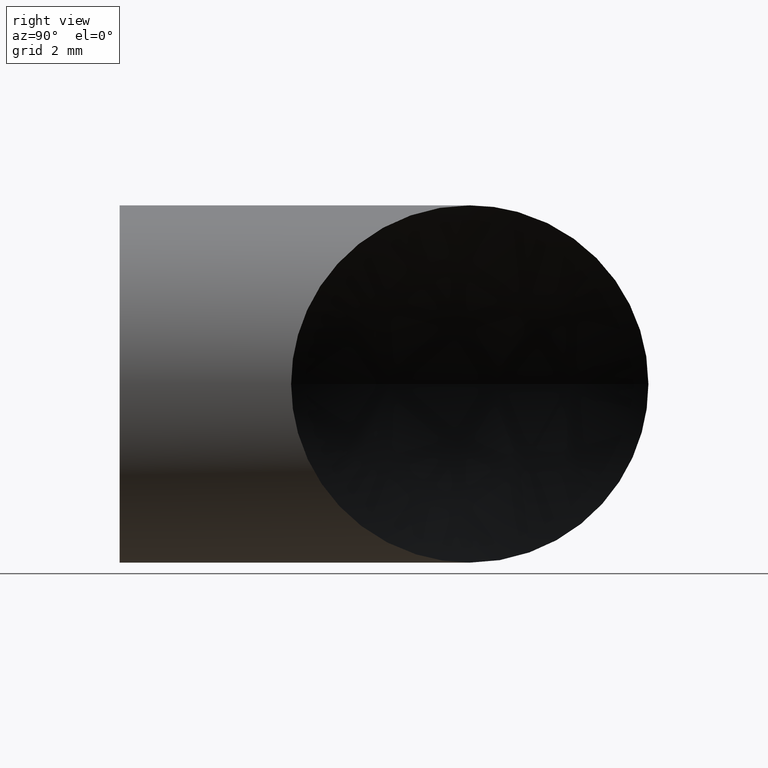
[diagram: clean part render]
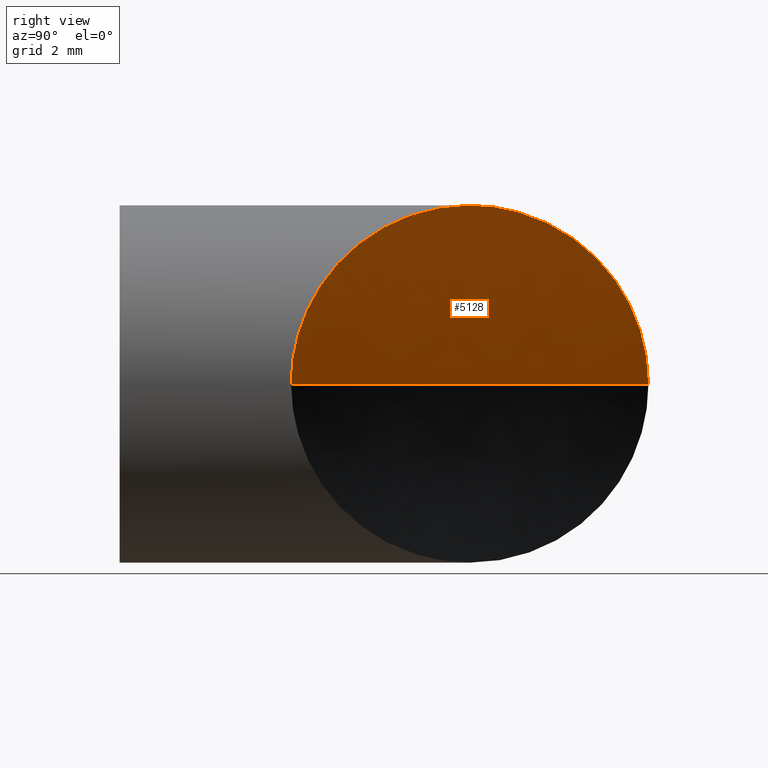
[diagram: same view with one face highlighted and labeled with its STEP entity id]
A machine part, right view. The second image highlights one B-rep face of the part: STEP entity #5128.
In plain terms, the highlighted face is a freeform B-spline surface patch.
Its self-contained STEP definition (entity closure, byte-faithful):
#10 = CARTESIAN_POINT ( 'NONE',  ( 0.2074293899178265000, -0.1108351405195563300, 0.09779979726553927900 ) ) ;
#242 = CARTESIAN_POINT ( 'NONE',  ( -0.2483313336091525200, 0.3449255830074313100, 0.03822638412863516700 ) ) ;
#249 = CARTESIAN_POINT ( 'NONE',  ( -0.007620581992234956900, 0.07258758138988975800, 0.05412013182545205600 ) ) ;
#260 = CARTESIAN_POINT ( 'NONE',  ( -0.1439263207305914400, 0.2405205701288879700, 0.1801129965289732000 ) ) ;
#328 = VERTEX_POINT ( 'NONE', #3143 ) ;
#446 = CARTESIAN_POINT ( 'NONE',  ( 0.02750204095376720600, 0.06909220844451242900, 0.2176308934123368000 ) ) ;
#467 = CARTESIAN_POINT ( 'NONE',  ( 0.2240420653556845200, -0.1274478159574367100, 0.06572660798382019800 ) ) ;
#704 = CARTESIAN_POINT ( 'NONE',  ( -0.2389835721197730600, 0.3355778215180397200, 0.06519288010595564200 ) ) ;
#715 = CARTESIAN_POINT ( 'NONE',  ( 0.008255332230856973100, 0.07258758138988975800, 0.2215077017317224600 ) ) ;
#725 = CARTESIAN_POINT ( 'NONE',  ( -0.1045585658773618700, 0.2011528152756242900, 0.2009096358840281000 ) ) ;
#769 = VERTEX_POINT ( 'NONE', #4355 ) ;
#925 = CARTESIAN_POINT ( 'NONE',  ( 0.06220057806874414200, 0.03439367132953992400, 0.2104882971352759500 ) ) ;
#948 = CARTESIAN_POINT ( 'NONE',  ( 0.2376302804509106700, -0.1410360310526207700, 0.01946412126329600000 ) ) ;
#1174 = CARTESIAN_POINT ( 'NONE',  ( -0.2271271847888585400, 0.3237214341871170700, 0.09000974389156730900 ) ) ;
#1180 = CARTESIAN_POINT ( 'NONE',  ( -0.2606205819970633900, 0.3575920813965498500, 0.06476019384117305500 ) ) ;
#1191 = CARTESIAN_POINT ( 'NONE',  ( -0.03561390963605611700, 0.1322081590343601200, 0.2200089696472141100 ) ) ;
#1382 = EDGE_CURVE ( 'NONE', #769, #5370, #2507, .T. ) ;
#1386 = CARTESIAN_POINT ( 'NONE',  ( 0.1024936689918958700, -0.005899419593617726500, 0.1949496336792929400 ) ) ;
#1407 = CARTESIAN_POINT ( 'NONE',  ( 0.2417820120806034600, -0.1451877626823570900, -0.01003554106031911800 ) ) ;
#1619 = CARTESIAN_POINT ( 'NONE',  ( 0.2453794180125934700, -0.1484079186143272300, 0.04348006980973102100 ) ) ;
#1628 = CARTESIAN_POINT ( 'NONE',  ( -0.2131319652719362600, 0.3097262146702338700, 0.1126346569115758000 ) ) ;
#1638 = CARTESIAN_POINT ( 'NONE',  ( -0.2427363646247167900, 0.3575920813965499100, 0.2533222913409399800 ) ) ;
#1850 = CARTESIAN_POINT ( 'NONE',  ( 0.1413515329557038200, -0.04475728355743328200, 0.1713969580252879300 ) ) ;
#1876 = CARTESIAN_POINT ( 'NONE',  ( 0.2423794180125524700, -0.1457851686142592500, -0.02999103035275857100 ) ) ;
#2066 = CARTESIAN_POINT ( 'NONE',  ( -0.2576205853558131100, 0.3542148351772880800, -0.009793500484691623800 ) ) ;
#2101 = CARTESIAN_POINT ( 'NONE',  ( -0.1976029079395368300, 0.2941971573377943300, 0.1327281202608942000 ) ) ;
#2159 = FACE_OUTER_BOUND ( 'NONE', #4875, .T. ) ;
#2236 = B_SPLINE_CURVE_WITH_KNOTS ( 'NONE', 3,
 ( #2991, #2066, #3006, #242, #3491, #704, #3943, #1174, #4406, #1628, #4857, #2101, #5316, #2561, #5788, #3030, #260, #3512, #725, #3963, #1191, #4426 ),
 .UNSPECIFIED., .F., .F.,
 ( 4, 2, 2, 2, 2, 2, 2, 2, 2, 2, 4 ),
 ( 7.301310902119583700E-011, 0.001512466437549853400, 0.002268699619818224800, 0.003024932802086596500, 0.003781165984354968200, 0.004537399166623339400, 0.005293632348891711000, 0.006049865531160082700, 0.007562331895696826000, 0.009074798260233567600, 0.01209973098930705600 ),
 .UNSPECIFIED. ) ;
#2306 = CARTESIAN_POINT ( 'NONE',  ( -0.0006254142050232730200, 0.09721966360332630300, 0.2200089696472497800 ) ) ;
#2326 = CARTESIAN_POINT ( 'NONE',  ( 0.1769492211242668900, -0.08035497172597441700, 0.1394830983004274900 ) ) ;
#2437 = EDGE_CURVE ( 'NONE', #328, #769, #2236, .T. ) ;
#2507 = B_SPLINE_CURVE_WITH_KNOTS ( 'NONE', 3,
 ( #5520, #2306, #5989, #3234, #446, #3696, #925, #4159, #1386, #4615, #1850, #5070, #2326, #5545, #2784, #10, #3256, #467, #3719, #948, #4187, #1407, #4642, #1876 ),
 .UNSPECIFIED., .F., .F.,
 ( 4, 2, 2, 2, 2, 2, 2, 2, 2, 2, 2, 4 ),
 ( 0.01209973098930705600, 0.01285562225871816600, 0.01361151352812927500, 0.01512329606695149600, 0.01663507860577371400, 0.01814686114459593600, 0.01965864368341815500, 0.02041453495282926500, 0.02117042622224037800, 0.02268220876106260100, 0.02343810003047371000, 0.02419399129988482000 ),
 .UNSPECIFIED. ) ;
#2553 = CARTESIAN_POINT ( 'NONE',  ( 0.2500080848185939300, -0.1484079186143272300, 0.1168052224020416500 ) ) ;
#2561 = CARTESIAN_POINT ( 'NONE',  ( -0.1806838460377411800, 0.2772780954360034600, 0.1506076694578411300 ) ) ;
#2784 = CARTESIAN_POINT ( 'NONE',  ( 0.1979412237186970500, -0.1013469743204267700, 0.1125618723699073200 ) ) ;
#2884 = CARTESIAN_POINT ( 'NONE',  ( 0.2423794180125524700, -0.1457851686142592500, -0.02999103035275857100 ) ) ;
#2991 = CARTESIAN_POINT ( 'NONE',  ( -0.2576205819873823600, 0.3542148313878258300, -0.02999102838085454500 ) ) ;
#2996 = CARTESIAN_POINT ( 'NONE',  ( 0.2453794180125935500, -0.1484079186143272300, -0.02999103035275874100 ) ) ;
#3006 = CARTESIAN_POINT ( 'NONE',  ( -0.2552105810381373200, 0.3518048304364159200, 0.009762192274555023900 ) ) ;
#3015 = CARTESIAN_POINT ( 'NONE',  ( -0.007620581992234882300, 0.07258758138988975800, -0.02999103035275897000 ) ) ;
#3030 = CARTESIAN_POINT ( 'NONE',  ( -0.1565258089409656800, 0.2531200583392497200, 0.1714508442765975100 ) ) ;
#3143 = CARTESIAN_POINT ( 'NONE',  ( -0.2576205819873823600, 0.3542148313878258300, -0.02999102838085454500 ) ) ;
#3234 = CARTESIAN_POINT ( 'NONE',  ( 0.02044056173721796300, 0.07615368766102383100, 0.2185292085362351100 ) ) ;
#3256 = CARTESIAN_POINT ( 'NONE',  ( 0.2118505656495168500, -0.1152563162512689300, 0.09007052665277129300 ) ) ;
#3359 = CARTESIAN_POINT ( 'NONE',  ( -0.007620581987947417000, 0.07296483138618820000, -0.02999103035275718300 ) ) ;
#3491 = CARTESIAN_POINT ( 'NONE',  ( -0.2454928416588274000, 0.3420870910570942800, 0.04750476367514004600 ) ) ;
#3501 = CARTESIAN_POINT ( 'NONE',  ( -0.002321593090103716900, 0.07258758138988975800, 0.1380642103514827500 ) ) ;
#3512 = CARTESIAN_POINT ( 'NONE',  ( -0.1179487715615640900, 0.2145430209598600800, 0.1948436802938228200 ) ) ;
#3696 = CARTESIAN_POINT ( 'NONE',  ( 0.04845725117689932800, 0.04813699822137986600, 0.2140502360617058400 ) ) ;
#3719 = CARTESIAN_POINT ( 'NONE',  ( 0.2307887330136828000, -0.1341944836153927100, 0.04770188253614924400 ) ) ;
#3811 = ORIENTED_EDGE ( 'NONE', *, *, #1382, .T. ) ;
#3814 = CARTESIAN_POINT ( 'NONE',  ( -0.2576205819873823600, 0.3542148313878258300, -0.02999102838085454500 ) ) ;
#3863 = ORIENTED_EDGE ( 'NONE', *, *, #5391, .T. ) ;
#3943 = CARTESIAN_POINT ( 'NONE',  ( -0.2352946140681322400, 0.3318888634663908500, 0.07368090224607581900 ) ) ;
#3951 = CARTESIAN_POINT ( 'NONE',  ( -0.2606205819970632800, 0.3575920813965499100, -0.02999103035275919500 ) ) ;
#3963 = CARTESIAN_POINT ( 'NONE',  ( -0.06335933874966041800, 0.1599535881479224600, 0.2154505157463767500 ) ) ;
#4159 = CARTESIAN_POINT ( 'NONE',  ( 0.08921848642159478600, 0.007375762976688769900, 0.2009364391487256900 ) ) ;
#4187 = CARTESIAN_POINT ( 'NONE',  ( 0.2393932898521244400, -0.1427990404538779500, 0.009808751048616658500 ) ) ;
#4355 = CARTESIAN_POINT ( 'NONE',  ( -0.007620581987694802200, 0.1042148313859973400, 0.2200089696472339600 ) ) ;
#4406 = CARTESIAN_POINT ( 'NONE',  ( -0.2226270631898707200, 0.3192213125881686000, 0.09787307081750557000 ) ) ;
#4416 = CARTESIAN_POINT ( 'NONE',  ( -0.2546512709988013000, 0.3575920813965498500, 0.1593231983009238400 ) ) ;
#4426 = CARTESIAN_POINT ( 'NONE',  ( -0.007620581987694802200, 0.1042148313859973400, 0.2200089696472339600 ) ) ;
#4615 = CARTESIAN_POINT ( 'NONE',  ( 0.1285130610234083700, -0.03191881162513076500, 0.1802257193236537200 ) ) ;
#4618 = B_SPLINE_CURVE_WITH_KNOTS ( 'NONE', 2,
 ( #5644, #3359, #3814 ),
 .UNSPECIFIED., .F., .F.,
 ( 3, 3 ),
 ( 0.5022049305544620300, 0.5028349107128810000 ),
 .UNSPECIFIED. ) ;
#4642 = CARTESIAN_POINT ( 'NONE',  ( 0.2423794180125526100, -0.1457851686142593000, -0.02005380188249038200 ) ) ;
#4734 =( BOUNDED_SURFACE ( )  B_SPLINE_SURFACE ( 2, 3, ( 
 ( #2996, #1619, #2553, #5777 ),
 ( #3015, #249, #3501, #715 ),
 ( #3951, #1180, #4416, #1638 ) ),
 .UNSPECIFIED., .F., .F., .F. ) 
 B_SPLINE_SURFACE_WITH_KNOTS ( ( 3, 3 ),
 ( 4, 4 ),
 ( 0.5022011506735114500, 0.5028386905938423400 ),
 ( 0.0000000000000000000, 1.000000000000000000 ),
 .UNSPECIFIED. ) 
 GEOMETRIC_REPRESENTATION_ITEM ( )  RATIONAL_B_SPLINE_SURFACE ( (
 ( 1.000000000000000000, 0.9986756918039301200, 0.9986756918039301200, 1.000000000000000000),
 ( 1.000000000000000000, 0.9986756918039301200, 0.9986756918039301200, 1.000000000000000000),
 ( 1.000000000000000000, 0.9986756918039301200, 0.9986756918039301200, 1.000000000000000000) ) ) 
 REPRESENTATION_ITEM ( '' )  SURFACE ( )  );
#4857 = CARTESIAN_POINT ( 'NONE',  ( -0.2081143215983112200, 0.3047085709965687800, 0.1195852596381537500 ) ) ;
#4875 = EDGE_LOOP ( 'NONE', ( #3811, #3863, #5202 ) ) ;
#5070 = CARTESIAN_POINT ( 'NONE',  ( 0.1655282684919116800, -0.06893401909364127400, 0.1510318645287136700 ) ) ;
#5128 = ADVANCED_FACE ( 'NONE', ( #2159 ), #4734, .T. ) ;
#5202 = ORIENTED_EDGE ( 'NONE', *, *, #2437, .T. ) ;
#5316 = CARTESIAN_POINT ( 'NONE',  ( -0.1921087989718820200, 0.2887030483701443800, 0.1389198382464076600 ) ) ;
#5370 = VERTEX_POINT ( 'NONE', #2884 ) ;
#5391 = EDGE_CURVE ( 'NONE', #5370, #328, #4618, .T. ) ;
#5520 = CARTESIAN_POINT ( 'NONE',  ( -0.007620581987694802200, 0.1042148313859973400, 0.2200089696472339600 ) ) ;
#5545 = CARTESIAN_POINT ( 'NONE',  ( 0.1928438265871155700, -0.09624957718882351500, 0.1196281329275930300 ) ) ;
#5644 = CARTESIAN_POINT ( 'NONE',  ( 0.2423794180125524700, -0.1457851686142592500, -0.02999103035275857100 ) ) ;
#5777 = CARTESIAN_POINT ( 'NONE',  ( 0.2592470290864307700, -0.1484079186143272300, 0.1896931121225048900 ) ) ;
#5788 = CARTESIAN_POINT ( 'NONE',  ( -0.1747247529272730700, 0.2713190023255573300, 0.1561247801566461600 ) ) ;
#5989 = CARTESIAN_POINT ( 'NONE',  ( 0.006385690225449717300, 0.09020855917279198300, 0.2197159204180936200 ) ) ;